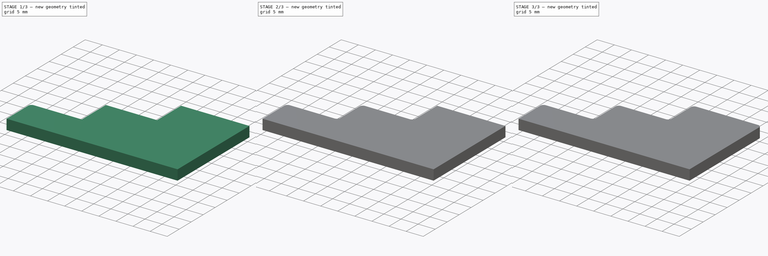
[diagram: build sequence overview — one tinted view per stage of 3, left to right]
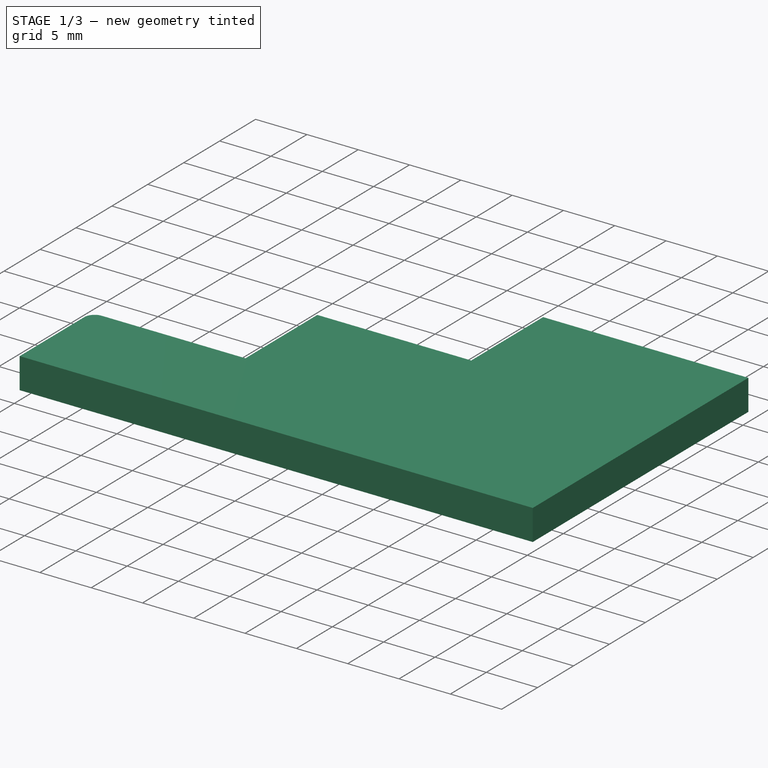
[diagram: stage 1 of 3 — iso view after this stage's code; geometry added in this stage tinted green]
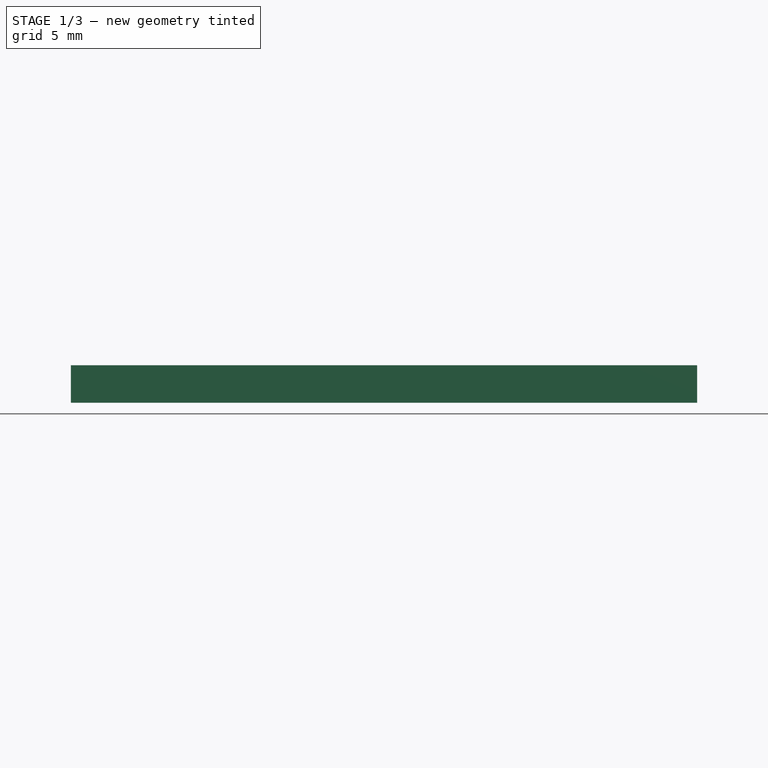
[diagram: stage 1 of 3 — front view after this stage's code; geometry added in this stage tinted green]
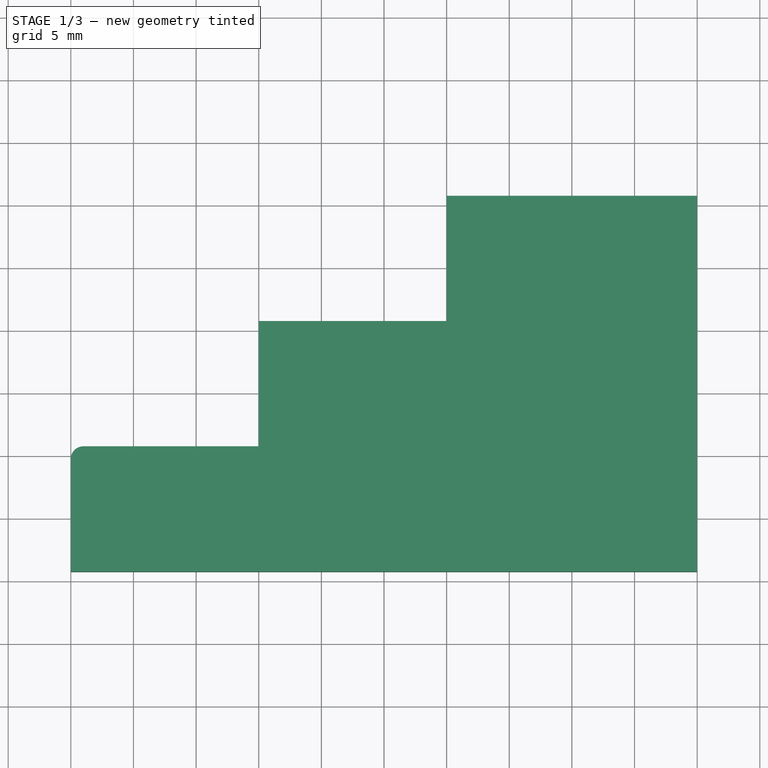
[diagram: stage 1 of 3 — top view after this stage's code; geometry added in this stage tinted green]
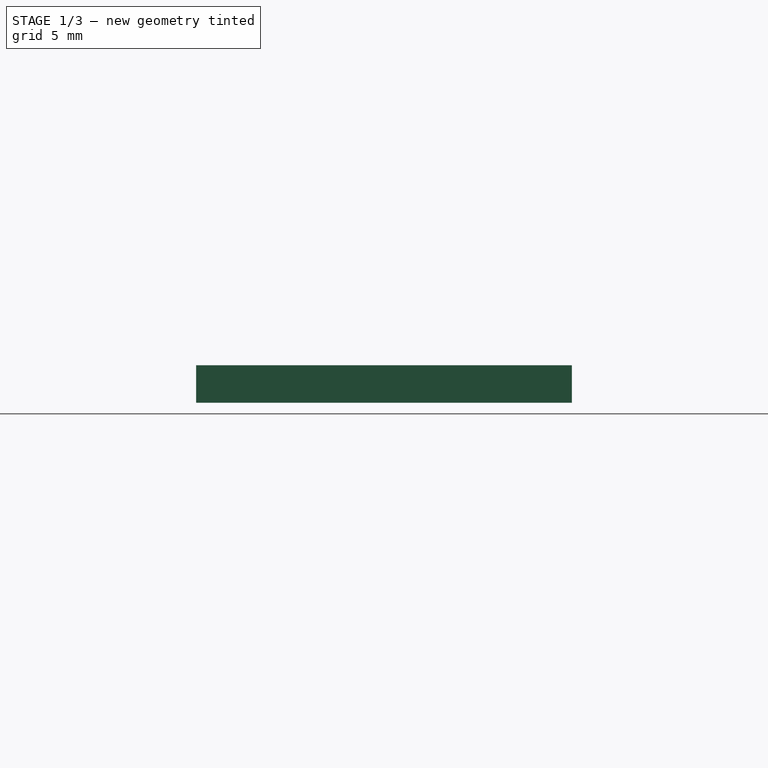
[diagram: stage 1 of 3 — right view after this stage's code; geometry added in this stage tinted green]
FCSTD DOCUMENT  (FreeCAD 0.18.4R)
Label: poulie_support_XXX
License: All rights reserved
LicenseURL: http://en.wikipedia.org/wiki/All_rights_reserved
objects: PartDesign::Fillet×6, Sketcher::SketchObject×1, PartDesign::Pad×1, PartDesign::Body×1
note: 10 computed .brp shape members not serialized (recipe doc carries the construction recipe); baked Part::Feature solids carry a one-line shape summary decoded from their .brp

FEATURE [Sketcher::SketchObject] Sketch
  MapMode = 5
  Support = -> [XY_Plane]
  sketch-geometry (8):
    g0: LineSegment StartX=-10 StartY=15.7514 StartZ=0 EndX=10 EndY=15.7514 EndZ=0
    g1: LineSegment StartX=10 StartY=15.7514 StartZ=0 EndX=10 EndY=-14.2486 EndZ=0
    g2: LineSegment StartX=10 StartY=-14.2486 StartZ=0 EndX=-40 EndY=-14.2486 EndZ=0
    g3: LineSegment StartX=-40 StartY=-14.2486 StartZ=0 EndX=-40 EndY=-4.24863 EndZ=0
    g4: LineSegment StartX=-40 StartY=-4.24863 StartZ=0 EndX=-25 EndY=-4.24863 EndZ=0
    g5: LineSegment StartX=-10 StartY=15.7514 StartZ=0 EndX=-10 EndY=5.75137 EndZ=0
    g6: LineSegment StartX=-10 StartY=5.75137 StartZ=0 EndX=-25 EndY=5.75137 EndZ=0
    g7: LineSegment StartX=-25 StartY=5.75137 StartZ=0 EndX=-25 EndY=-4.24863 EndZ=0
  constraints (22):
    c: Distance(g0) = 20
    c: Distance(g2) = 50
    c: Coincident(g2,g1)
    c: Coincident(g1,g0)
    c: Coincident(g3,g4)
    c: Coincident(g3,g2)
    c: Distance(g3) = 10
    c: Distance(g1) = 30
    c: Distance(g4) = 15
    c: Parallel(g1,g-2)
    c: Parallel(g4,g-1)
    c: Parallel(g0,g2)
    c: Coincident(g6,g5)
    c: Coincident(g7,g6)
    c: Coincident(g7,g4)
    c: Distance(g5) = 10
    c: Distance(g7) = 10
    c: Coincident(g5,g0)
    c: Parallel(g5,g-2)
    c: Parallel(g7,g-2)
    c: Parallel(g3,g-2)
    c: Symmetric(g0,g0,g-2)
FEATURE [PartDesign::Pad] Pad
  Length = 3
  Length2 = 100
  Profile = -> Sketch
  Type = 0
FEATURE [PartDesign::Fillet] Fillet
  Base = -> Pad [Edge11]
  BaseFeature = -> Pad
  Radius = 1
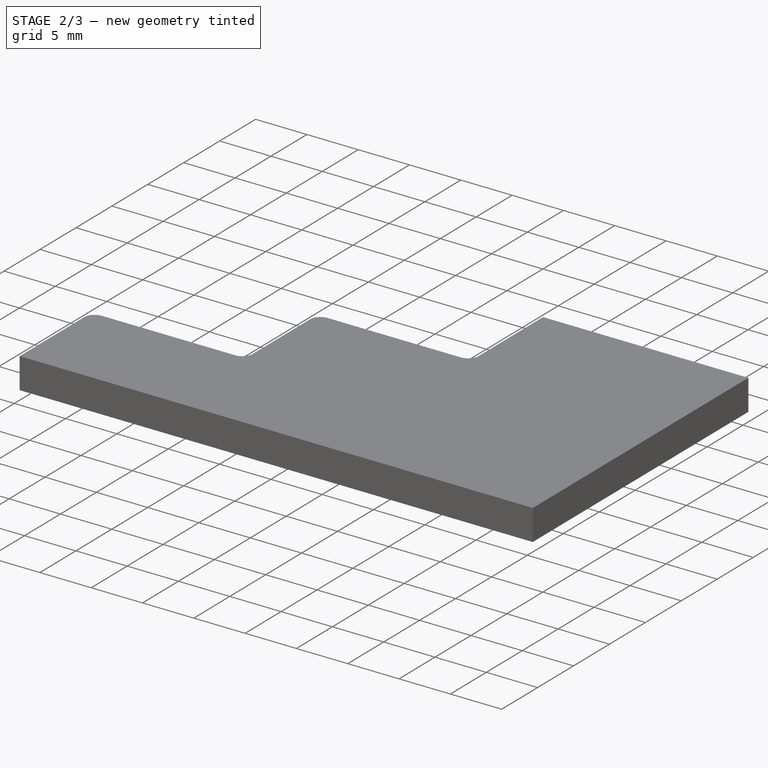
[diagram: stage 2 of 3 — iso view after this stage's code; geometry added in this stage tinted green]
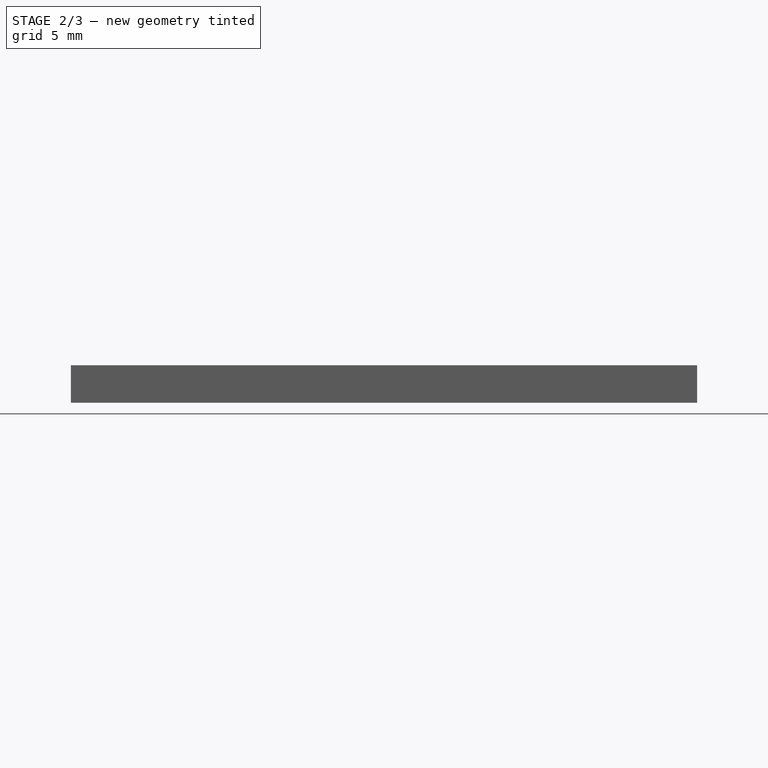
[diagram: stage 2 of 3 — front view after this stage's code; geometry added in this stage tinted green]
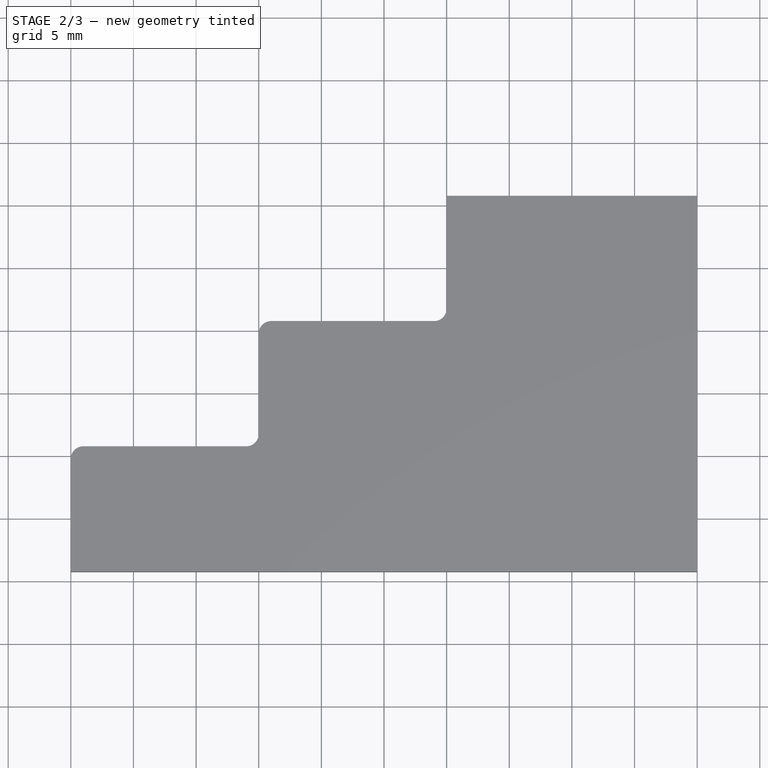
[diagram: stage 2 of 3 — top view after this stage's code; geometry added in this stage tinted green]
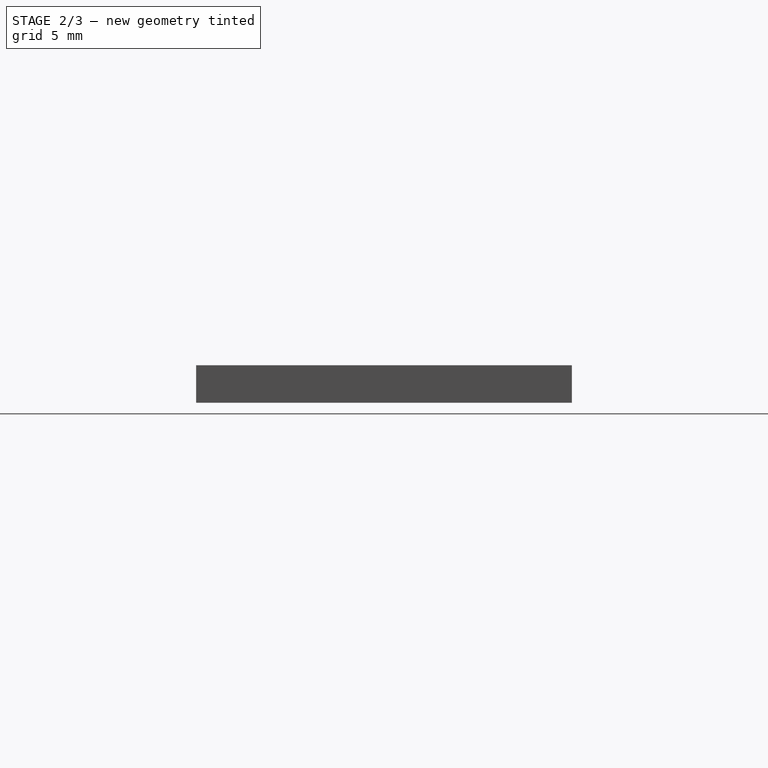
[diagram: stage 2 of 3 — right view after this stage's code; geometry added in this stage tinted green]
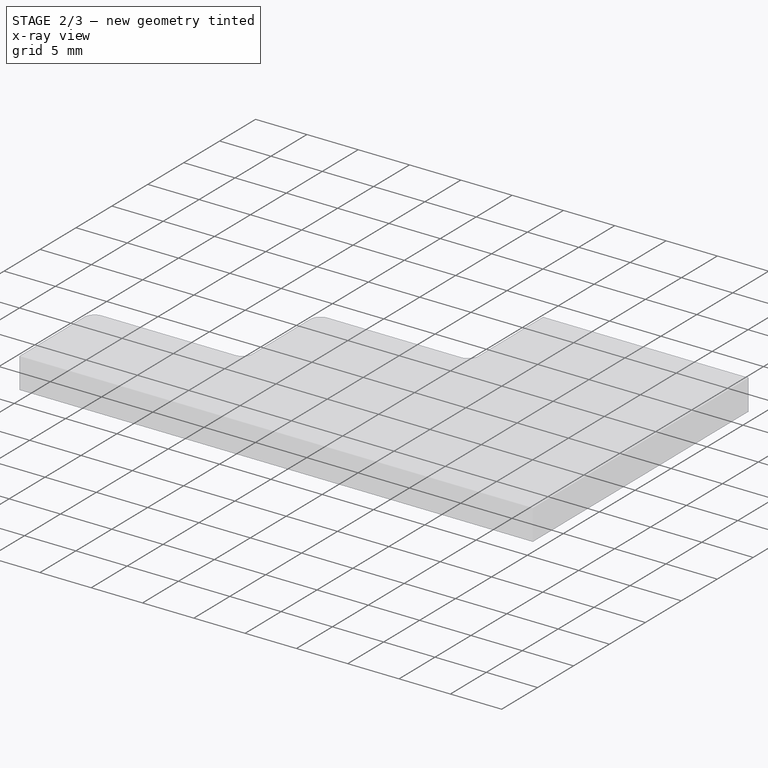
[diagram: stage 2 of 3 — x-ray composite at the iso view; earlier geometry ghosted, this stage's added geometry solid]
FEATURE [PartDesign::Fillet] Fillet001
  Base = -> Fillet [Edge23]
  BaseFeature = -> Fillet
  Radius = 1
FEATURE [PartDesign::Fillet] Fillet002
  Base = -> Fillet001 [Edge18]
  BaseFeature = -> Fillet001
  Radius = 1
FEATURE [PartDesign::Fillet] Fillet003
  Base = -> Fillet002 [Edge19]
  BaseFeature = -> Fillet002
  Radius = 1
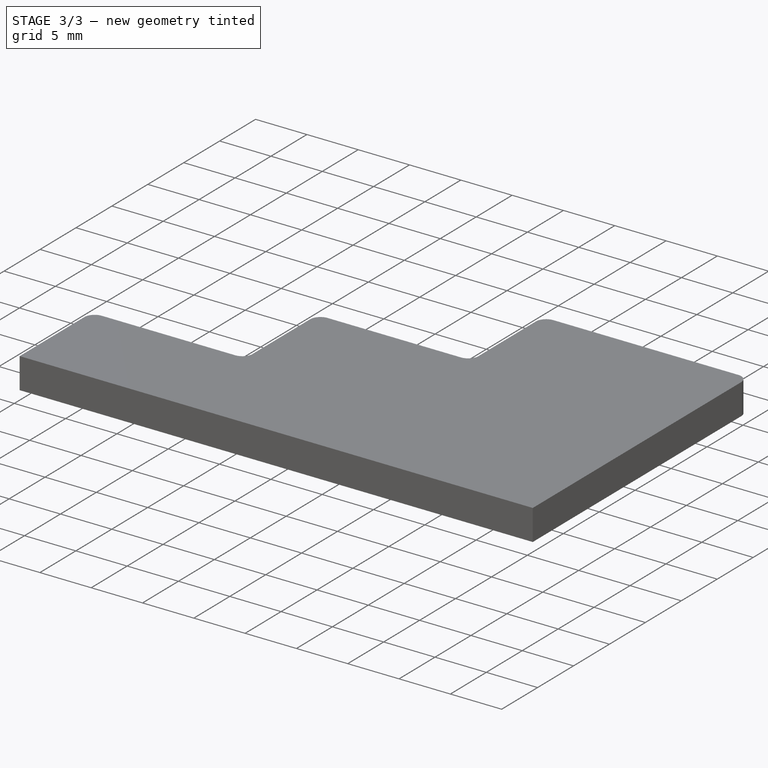
[diagram: stage 3 of 3 — iso view after this stage's code; geometry added in this stage tinted green]
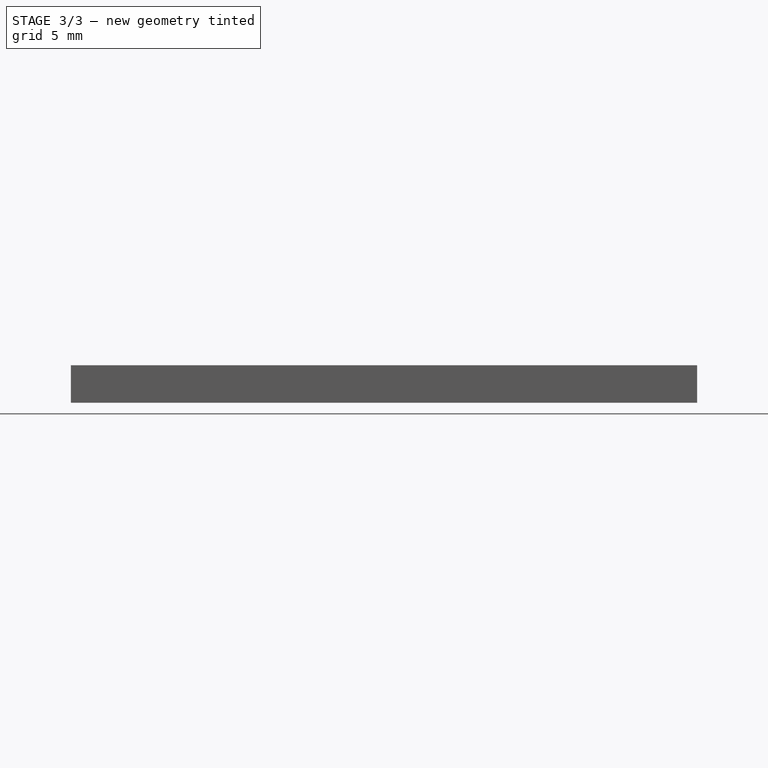
[diagram: stage 3 of 3 — front view after this stage's code; geometry added in this stage tinted green]
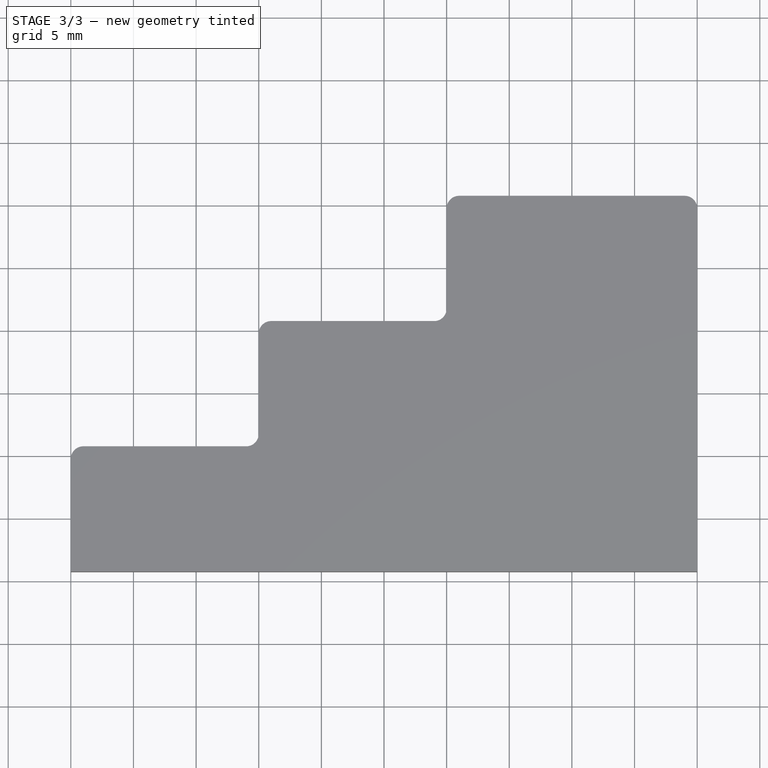
[diagram: stage 3 of 3 — top view after this stage's code; geometry added in this stage tinted green]
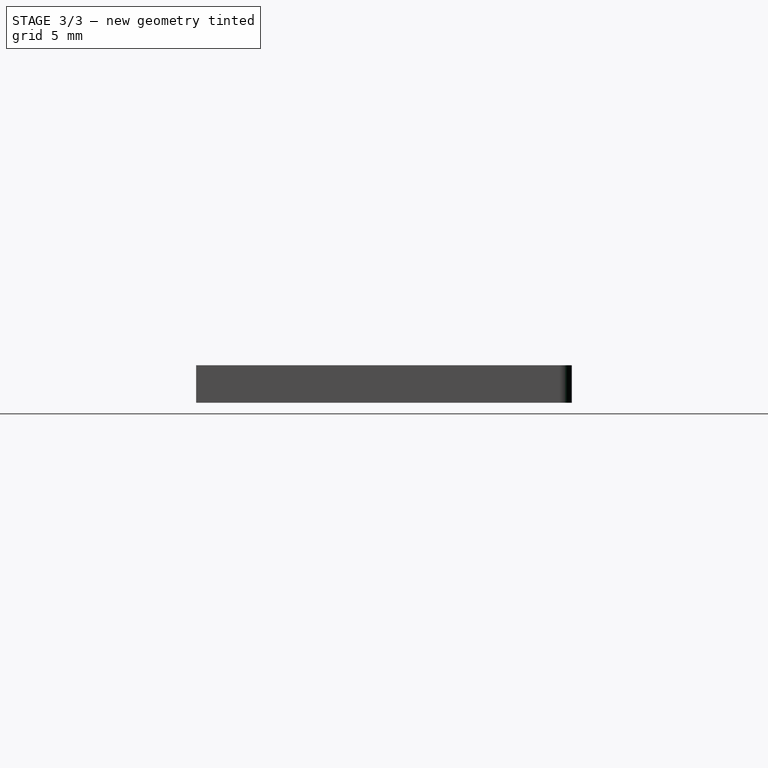
[diagram: stage 3 of 3 — right view after this stage's code; geometry added in this stage tinted green]
FEATURE [PartDesign::Fillet] Fillet004
  Base = -> Fillet003 [Edge20]
  BaseFeature = -> Fillet003
  Radius = 1
FEATURE [PartDesign::Fillet] Fillet005
  Base = -> Fillet004 [Edge21]
  BaseFeature = -> Fillet004
  Radius = 1
FEATURE [PartDesign::Body] Body
  Group = -> [Sketch,Pad,Fillet,Fillet001,Fillet002,Fillet003,Fillet004,Fillet005]
  Origin = -> Origin
  Tip = -> Fillet005
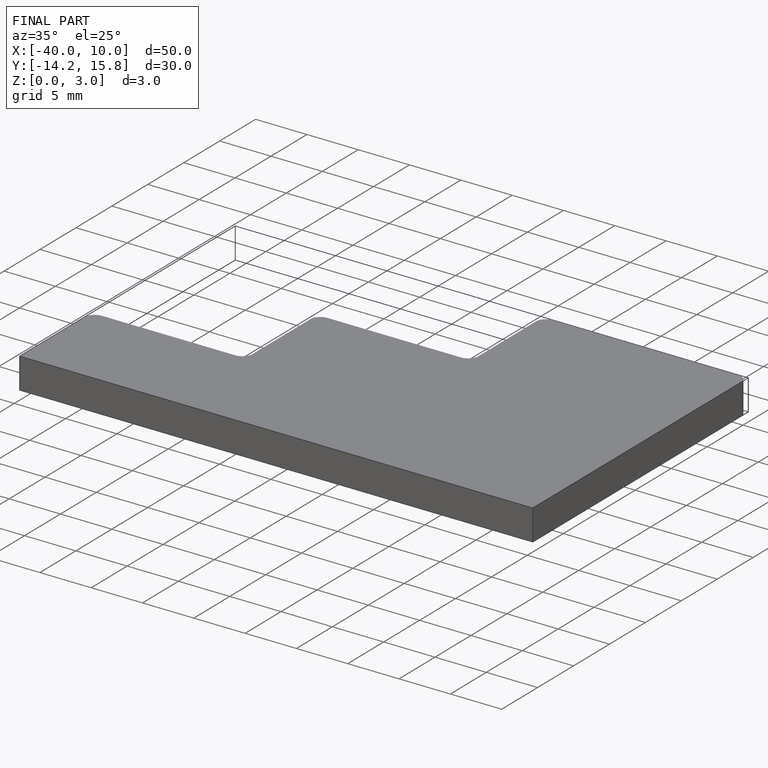
[diagram: finished part — iso view with bounding-box wireframe]
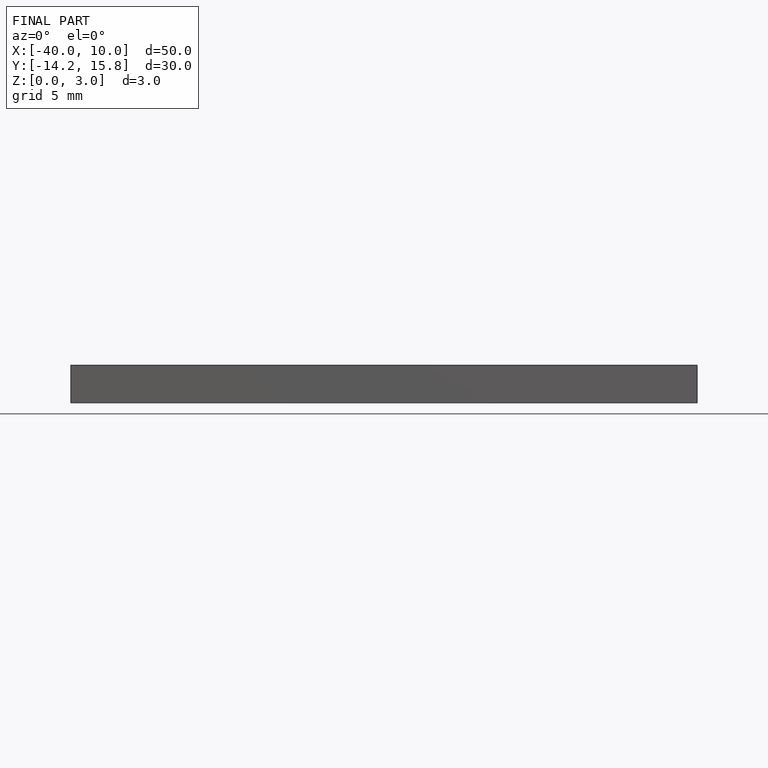
[diagram: finished part — front view with bounding-box wireframe]
